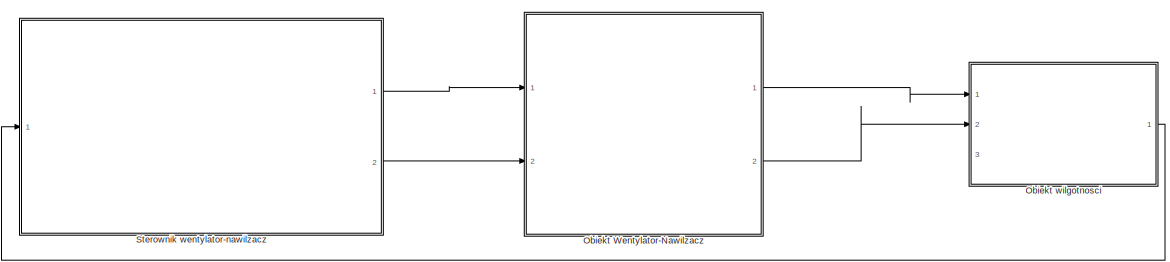
[diagram: root canvas - part 1/2, full width, top band]
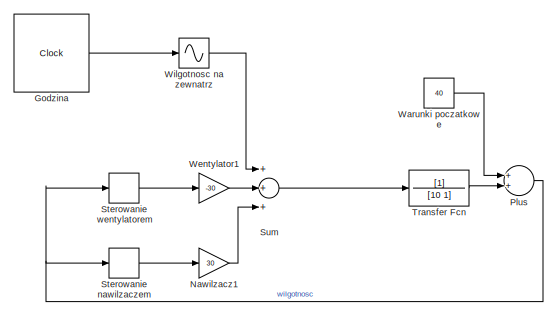
[diagram: root canvas - part 2/2, bottom center region]
MODEL slx_98637c63f6ae
KIND model
CONFIG AbsTol = auto
CONFIG EnableMultiTasking = off
CONFIG FixedStep = auto
CONFIG MaxStep = auto
CONFIG MinStep = auto
CONFIG RelTol = 1e-3
CONFIG SampleTimeConstraint = Unconstrained
CONFIG Solver = VariableStepAuto
CONFIG SolverName = VariableStepAuto
CONFIG StartTime = 0.0
CONFIG StopTime = intervals
BLOCK [Clock] Godzina 
  Decimation = 1
  DisplayTime = on
BLOCK [Gain] Nawilzacz1
  Gain = 30
  OutDataTypeStr = Inherit: Inherit via internal rule
  ParamDataTypeStr = Inherit: Inherit via internal rule
  SaturateOnIntegerOverflow = off
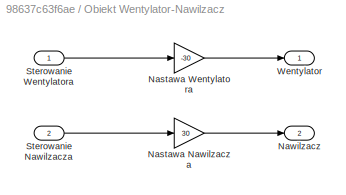
BLOCK [SubSystem] Obiekt Wentylator-Nawilzacz
  Ports = [2, 2]
  RequestExecContextInheritance = off
BLOCK [Gain] Obiekt Wentylator-Nawilzacz/Nastawa Nawilzacza
  Gain = 30
  OutDataTypeStr = Inherit: Inherit via internal rule
  ParamDataTypeStr = Inherit: Inherit via internal rule
  SaturateOnIntegerOverflow = off
BLOCK [Gain] Obiekt Wentylator-Nawilzacz/Nastawa Wentylatora
  Gain = -30
  OutDataTypeStr = Inherit: Inherit via internal rule
  ParamDataTypeStr = Inherit: Inherit via internal rule
  SaturateOnIntegerOverflow = off
BLOCK [Outport] Obiekt Wentylator-Nawilzacz/Nawilzacz
  IconDisplay = Port number
  Port = 2
BLOCK [Inport] Obiekt Wentylator-Nawilzacz/Sterowanie Nawilzacza
  IconDisplay = Port number
  Port = 2
BLOCK [Inport] Obiekt Wentylator-Nawilzacz/Sterowanie Wentylatora
  IconDisplay = Port number
BLOCK [Outport] Obiekt Wentylator-Nawilzacz/Wentylator
  IconDisplay = Port number
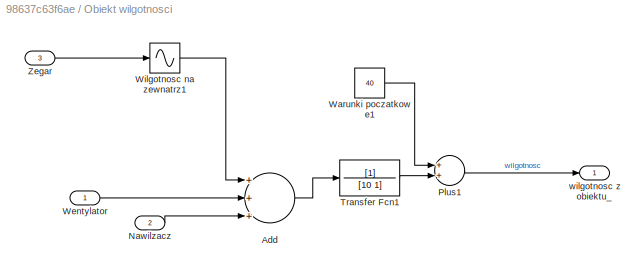
BLOCK [SubSystem] Obiekt wilgotnosci
  Ports = [3, 1]
  RequestExecContextInheritance = off
BLOCK [Sum] Obiekt wilgotnosci/Add
  InputSameDT = off
  Inputs = +++
  OutDataTypeStr = Inherit: Inherit via internal rule
  Ports = [3, 1]
  SaturateOnIntegerOverflow = off
BLOCK [Inport] Obiekt wilgotnosci/Nawilzacz
  IconDisplay = Port number
  Port = 2
BLOCK [Sum] Obiekt wilgotnosci/Plus1
  InputSameDT = off
  OutDataTypeStr = Inherit: Inherit via internal rule
  Ports = [2, 1]
  SaturateOnIntegerOverflow = off
BLOCK [TransferFcn] Obiekt wilgotnosci/Transfer Fcn1
  Denominator = [10 1]
BLOCK [Constant] Obiekt wilgotnosci/Warunki poczatkowe1
  Value = 40
BLOCK [Inport] Obiekt wilgotnosci/Wentylator
  IconDisplay = Port number
BLOCK [Sin] Obiekt wilgotnosci/Wilgotnosc na zewnatrz1
  Amplitude = 20
  Bias = 20
  Frequency = 2*pi/intervals
  Phase = -pi/2
  Ports = [1, 1]
  SampleTime = 0
  TimeSource = Use external signal
BLOCK [Inport] Obiekt wilgotnosci/Zegar
  IconDisplay = Port number
  Port = 3
BLOCK [Outport] Obiekt wilgotnosci/wilgotnosc z obiektu_
  IconDisplay = Port number
BLOCK [Sum] Plus
  InputSameDT = off
  OutDataTypeStr = Inherit: Inherit via internal rule
  Ports = [2, 1]
  SaturateOnIntegerOverflow = off
BLOCK [Relay] Sterowanie nawilzaczem
  InputProcessing = Elements as channels (sample based)
  OffOutputValue = 1
  OffSwitchValue = 50
  OnOutputValue = 0
  OnSwitchValue = 60
BLOCK [Relay] Sterowanie wentylatorem
  InputProcessing = Elements as channels (sample based)
  OffSwitchValue = 60
  OnSwitchValue = 70
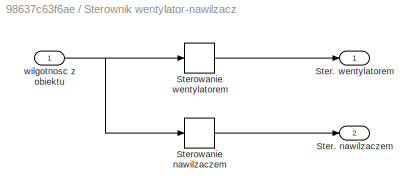
BLOCK [SubSystem] Sterownik wentylator-nawilzacz
  Ports = [1, 2]
  RequestExecContextInheritance = off
BLOCK [Outport] Sterownik wentylator-nawilzacz/Ster. nawilzaczem
  IconDisplay = Port number
  Port = 2
BLOCK [Outport] Sterownik wentylator-nawilzacz/Ster. wentylatorem
  IconDisplay = Port number
BLOCK [Relay] Sterownik wentylator-nawilzacz/Sterowanie nawilzaczem
  InputProcessing = Elements as channels (sample based)
  OffOutputValue = 1
  OffSwitchValue = 50
  OnOutputValue = 0
  OnSwitchValue = 60
BLOCK [Relay] Sterownik wentylator-nawilzacz/Sterowanie wentylatorem
  InputProcessing = Elements as channels (sample based)
  OffSwitchValue = 60
  OnSwitchValue = 70
BLOCK [Inport] Sterownik wentylator-nawilzacz/wilgotnosc z obiektu
  IconDisplay = Port number
BLOCK [Sum] Sum
  InputSameDT = off
  Inputs = +++
  OutDataTypeStr = Inherit: Inherit via internal rule
  Ports = [3, 1]
  SaturateOnIntegerOverflow = off
BLOCK [TransferFcn] Transfer Fcn
  Denominator = [10 1]
BLOCK [Constant] Warunki poczatkowe
  Value = 40
BLOCK [Gain] Wentylator1
  Gain = -30
  OutDataTypeStr = Inherit: Inherit via internal rule
  ParamDataTypeStr = Inherit: Inherit via internal rule
  SaturateOnIntegerOverflow = off
BLOCK [Sin] Wilgotnosc na zewnatrz
  Amplitude = 20
  Bias = 20
  Frequency = 2*pi/intervals
  Phase = -pi/2
  Ports = [1, 1]
  SampleTime = 0
  TimeSource = Use external signal
LINE Godzina :1 -> Wilgotnosc na zewnatrz:1
LINE Nawilzacz1:1 -> Sum:3
LINE Obiekt Wentylator-Nawilzacz/Nastawa Nawilzacza:1 -> Obiekt Wentylator-Nawilzacz/Nawilzacz:1
LINE Obiekt Wentylator-Nawilzacz/Nastawa Wentylatora:1 -> Obiekt Wentylator-Nawilzacz/Wentylator:1
LINE Obiekt Wentylator-Nawilzacz/Sterowanie Nawilzacza:1 -> Obiekt Wentylator-Nawilzacz/Nastawa Nawilzacza:1
LINE Obiekt Wentylator-Nawilzacz/Sterowanie Wentylatora:1 -> Obiekt Wentylator-Nawilzacz/Nastawa Wentylatora:1
LINE Obiekt Wentylator-Nawilzacz:1 -> Obiekt wilgotnosci:1
LINE Obiekt Wentylator-Nawilzacz:2 -> Obiekt wilgotnosci:2
LINE Obiekt wilgotnosci/Add:1 -> Obiekt wilgotnosci/Transfer Fcn1:1
LINE Obiekt wilgotnosci/Nawilzacz:1 -> Obiekt wilgotnosci/Add:3
LINE Obiekt wilgotnosci/Plus1:1 -> Obiekt wilgotnosci/wilgotnosc z obiektu_:1
LINE Obiekt wilgotnosci/Transfer Fcn1:1 -> Obiekt wilgotnosci/Plus1:2
LINE Obiekt wilgotnosci/Warunki poczatkowe1:1 -> Obiekt wilgotnosci/Plus1:1
LINE Obiekt wilgotnosci/Wentylator:1 -> Obiekt wilgotnosci/Add:2
LINE Obiekt wilgotnosci/Wilgotnosc na zewnatrz1:1 -> Obiekt wilgotnosci/Add:1
LINE Obiekt wilgotnosci/Zegar:1 -> Obiekt wilgotnosci/Wilgotnosc na zewnatrz1:1
LINE Obiekt wilgotnosci:1 -> Sterownik wentylator-nawilzacz:1
NET Plus:1 -> Sterowanie nawilzaczem:1, Sterowanie wentylatorem:1
LINE Sterowanie nawilzaczem:1 -> Nawilzacz1:1
LINE Sterowanie wentylatorem:1 -> Wentylator1:1
LINE Sterownik wentylator-nawilzacz/Sterowanie nawilzaczem:1 -> Sterownik wentylator-nawilzacz/Ster. nawilzaczem:1
LINE Sterownik wentylator-nawilzacz/Sterowanie wentylatorem:1 -> Sterownik wentylator-nawilzacz/Ster. wentylatorem:1
NET Sterownik wentylator-nawilzacz/wilgotnosc z obiektu:1 -> Sterownik wentylator-nawilzacz/Sterowanie nawilzaczem:1, Sterownik wentylator-nawilzacz/Sterowanie wentylatorem:1
LINE Sterownik wentylator-nawilzacz:1 -> Obiekt Wentylator-Nawilzacz:1
LINE Sterownik wentylator-nawilzacz:2 -> Obiekt Wentylator-Nawilzacz:2
LINE Sum:1 -> Transfer Fcn:1
LINE Transfer Fcn:1 -> Plus:2
LINE Warunki poczatkowe:1 -> Plus:1
LINE Wentylator1:1 -> Sum:2
LINE Wilgotnosc na zewnatrz:1 -> Sum:1
note: NET lines group one-source signal fan-out (src -> all destinations, sorted); 1:1 wires keep LINE
